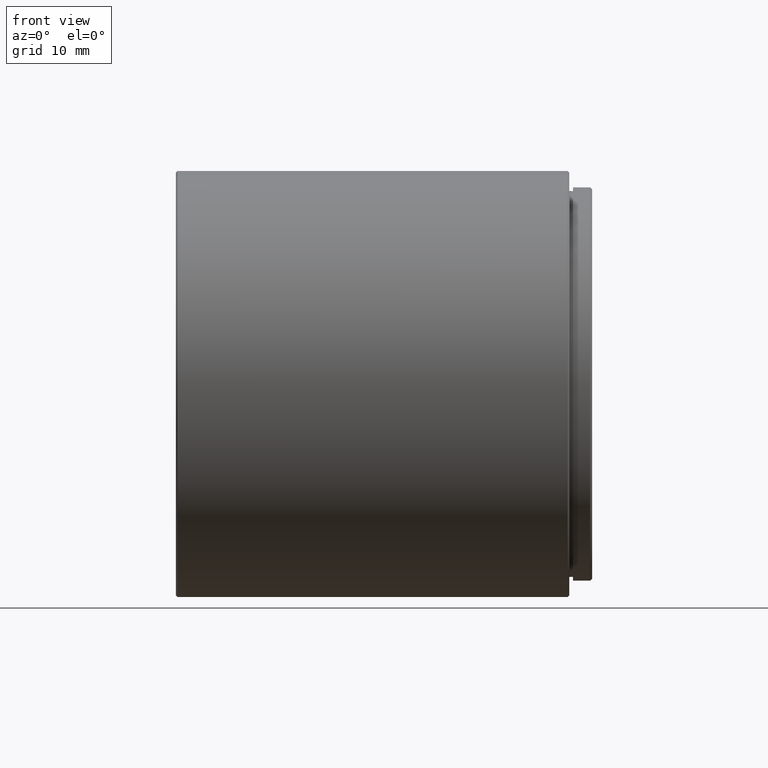
[diagram: clean part render]
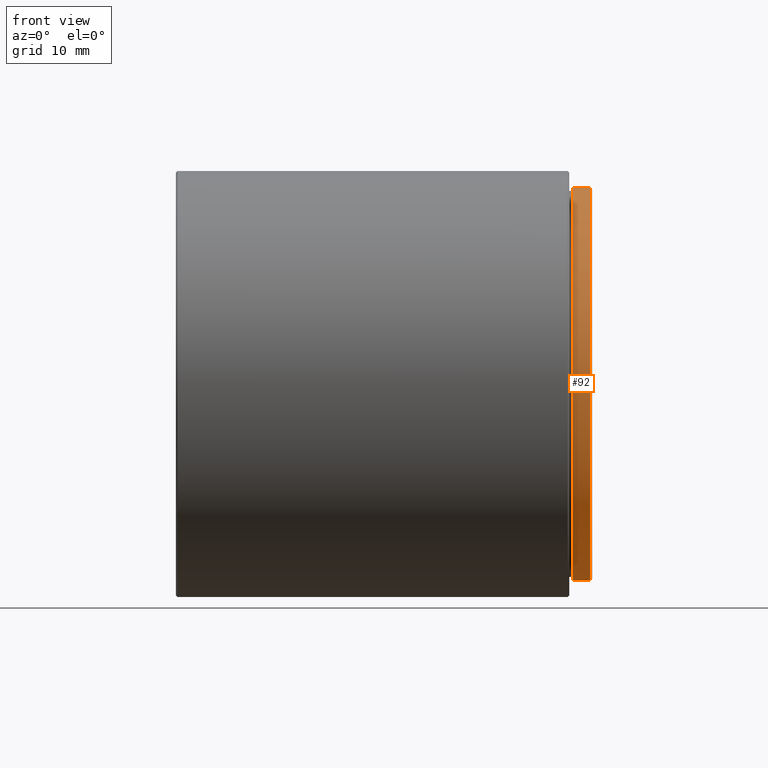
[diagram: same view with one face highlighted and labeled with its STEP entity id]
A machine part, front view. The second image highlights one B-rep face of the part: STEP entity #92.
In plain terms, the highlighted cylindrical surface (partial cylindrical patch) has radius 25.8 mm, axis along (-1, -0, -0).
Its self-contained STEP definition (entity closure, byte-faithful):
#27 = AXIS2_PLACEMENT_3D ( 'NONE', #1373, #152, #1363 ) ;
#48 = VECTOR ( 'NONE', #1128, 1000.000000000000000 ) ;
#92 = ADVANCED_FACE ( 'NONE', ( #582 ), #601, .T. ) ;
#152 = DIRECTION ( 'NONE',  ( -1.000000000000000000, 0.000000000000000000, 0.000000000000000000 ) ) ;
#239 = DIRECTION ( 'NONE',  ( -1.000000000000000000, -0.000000000000000000, -0.000000000000000000 ) ) ;
#258 = CARTESIAN_POINT ( 'NONE',  ( 4.025999999999982926, -20.10857142857141966, 25.80000000000000426 ) ) ;
#266 = CARTESIAN_POINT ( 'NONE',  ( 6.525999999999982926, -20.10857142857141611, -25.80000000000000426 ) ) ;
#287 = VERTEX_POINT ( 'NONE', #258 ) ;
#330 = CARTESIAN_POINT ( 'NONE',  ( 6.525999999999982926, -20.10857142857141966, 0.000000000000000000 ) ) ;
#366 = VERTEX_POINT ( 'NONE', #1013 ) ;
#380 = CIRCLE ( 'NONE', #27, 25.80000000000000426 ) ;
#442 = ORIENTED_EDGE ( 'NONE', *, *, #769, .T. ) ;
#453 = DIRECTION ( 'NONE',  ( 0.000000000000000000, 0.000000000000000000, 1.000000000000000000 ) ) ;
#497 = CARTESIAN_POINT ( 'NONE',  ( 6.525999999999982926, -20.10857142857141966, 25.80000000000000426 ) ) ;
#500 = LINE ( 'NONE', #266, #48 ) ;
#539 = AXIS2_PLACEMENT_3D ( 'NONE', #1223, #983, #1218 ) ;
#582 = FACE_OUTER_BOUND ( 'NONE', #1095, .T. ) ;
#601 = CYLINDRICAL_SURFACE ( 'NONE', #1338, 25.80000000000000426 ) ;
#679 = EDGE_CURVE ( 'NONE', #287, #1283, #1353, .T. ) ;
#681 = CARTESIAN_POINT ( 'NONE',  ( 4.025999999999982926, -20.10857142857141611, -25.80000000000000426 ) ) ;
#690 = EDGE_CURVE ( 'NONE', #366, #287, #829, .T. ) ;
#769 = EDGE_CURVE ( 'NONE', #836, #366, #380, .T. ) ;
#783 = VECTOR ( 'NONE', #239, 1000.000000000000000 ) ;
#800 = EDGE_CURVE ( 'NONE', #836, #1283, #500, .T. ) ;
#829 = LINE ( 'NONE', #497, #783 ) ;
#836 = VERTEX_POINT ( 'NONE', #1288 ) ;
#983 = DIRECTION ( 'NONE',  ( 1.000000000000000000, 0.000000000000000000, 0.000000000000000000 ) ) ;
#1012 = ORIENTED_EDGE ( 'NONE', *, *, #800, .F. ) ;
#1013 = CARTESIAN_POINT ( 'NONE',  ( 6.275999999999975820, -20.10857142857141966, 25.80000000000000426 ) ) ;
#1095 = EDGE_LOOP ( 'NONE', ( #1012, #442, #1396, #1488 ) ) ;
#1128 = DIRECTION ( 'NONE',  ( -1.000000000000000000, -0.000000000000000000, -0.000000000000000000 ) ) ;
#1218 = DIRECTION ( 'NONE',  ( 0.000000000000000000, 0.000000000000000000, -1.000000000000000000 ) ) ;
#1223 = CARTESIAN_POINT ( 'NONE',  ( 4.025999999999982926, -20.10857142857141966, 0.000000000000000000 ) ) ;
#1283 = VERTEX_POINT ( 'NONE', #681 ) ;
#1288 = CARTESIAN_POINT ( 'NONE',  ( 6.275999999999975820, -20.10857142857141611, -25.80000000000000426 ) ) ;
#1310 = DIRECTION ( 'NONE',  ( -1.000000000000000000, -0.000000000000000000, -0.000000000000000000 ) ) ;
#1338 = AXIS2_PLACEMENT_3D ( 'NONE', #330, #1310, #453 ) ;
#1353 = CIRCLE ( 'NONE', #539, 25.80000000000000426 ) ;
#1363 = DIRECTION ( 'NONE',  ( 0.000000000000000000, 0.000000000000000000, -1.000000000000000000 ) ) ;
#1373 = CARTESIAN_POINT ( 'NONE',  ( 6.275999999999975820, -20.10857142857141966, 0.000000000000000000 ) ) ;
#1396 = ORIENTED_EDGE ( 'NONE', *, *, #690, .T. ) ;
#1488 = ORIENTED_EDGE ( 'NONE', *, *, #679, .T. ) ;